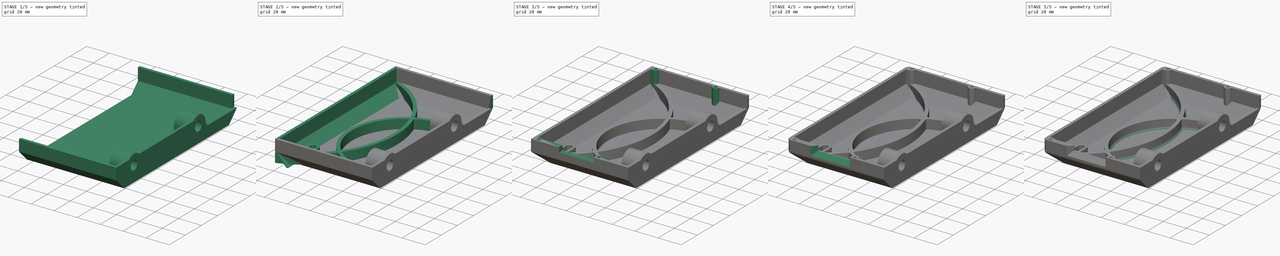
[diagram: build sequence overview — one tinted view per stage of 5, left to right]
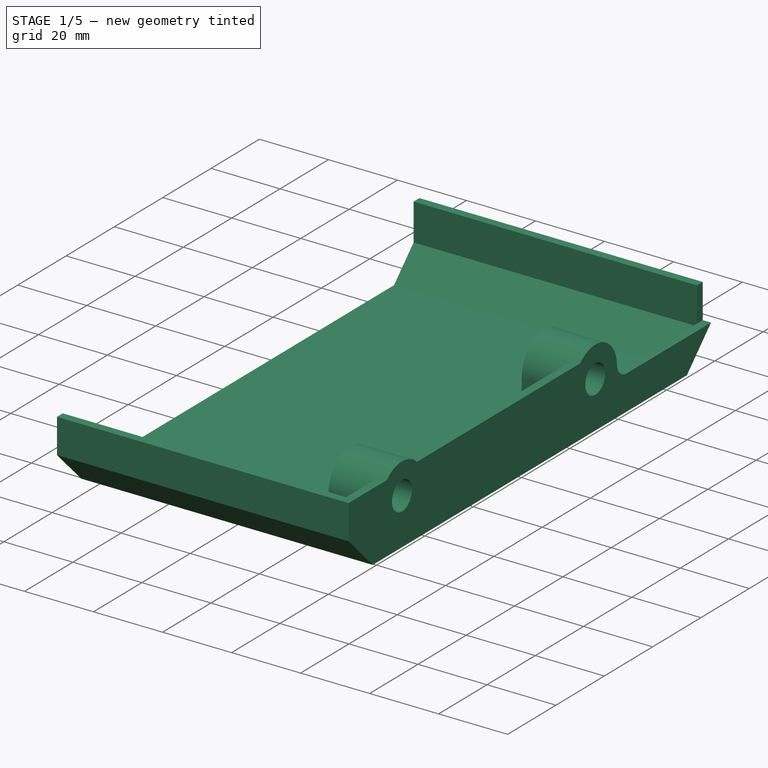
[diagram: stage 1 of 5 — iso view after this stage's code; geometry added in this stage tinted green]
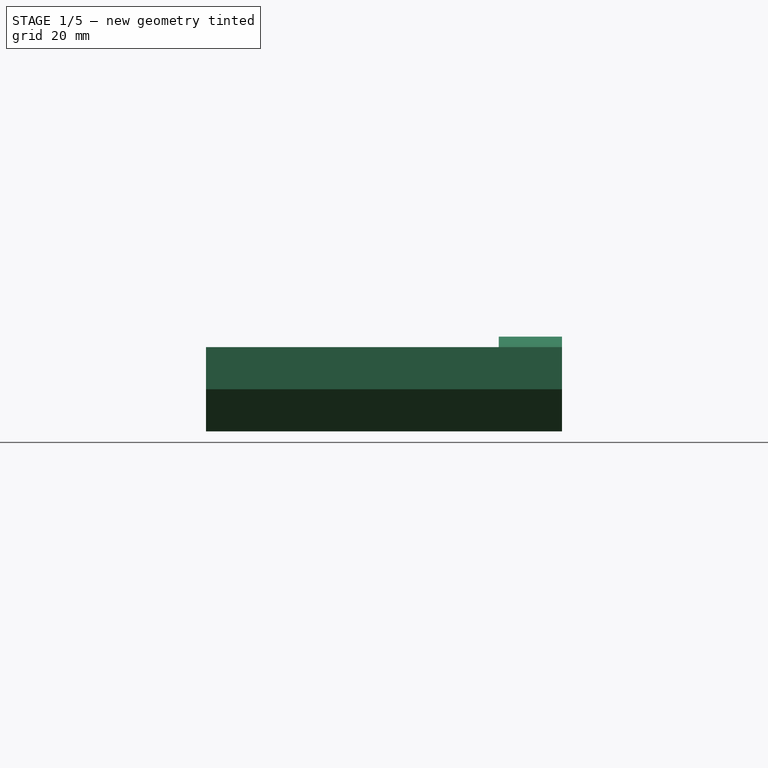
[diagram: stage 1 of 5 — front view after this stage's code; geometry added in this stage tinted green]
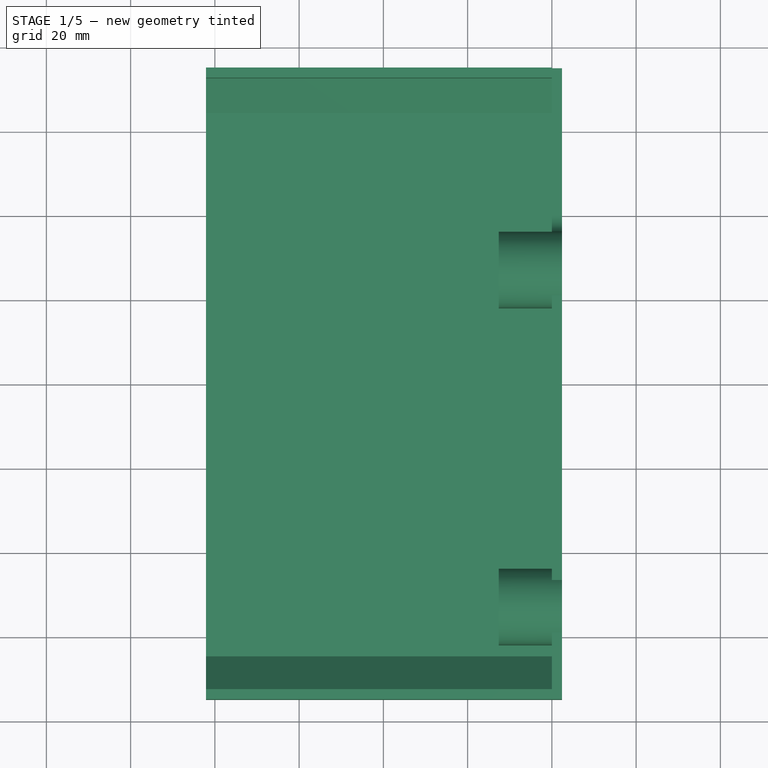
[diagram: stage 1 of 5 — top view after this stage's code; geometry added in this stage tinted green]
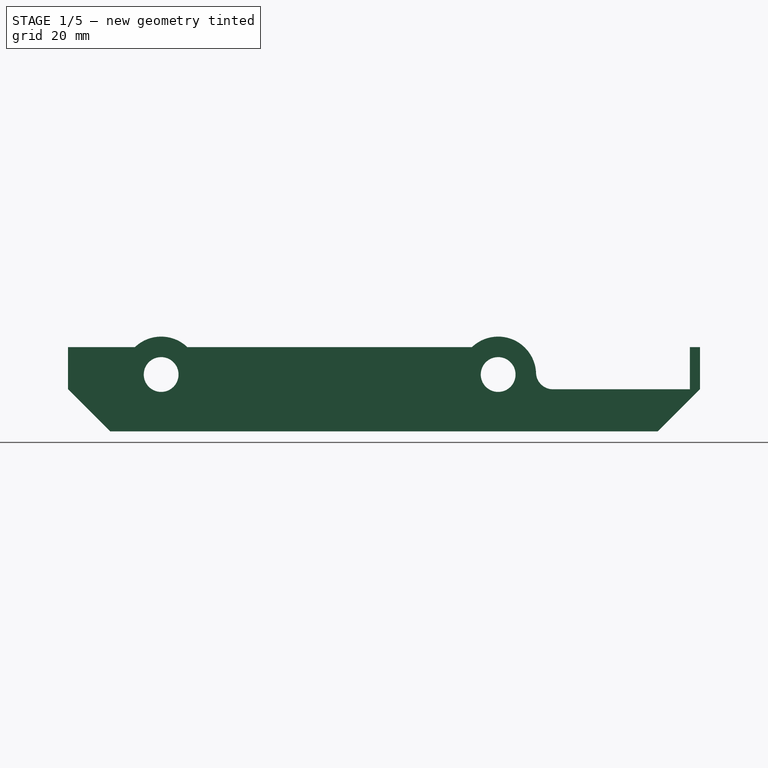
[diagram: stage 1 of 5 — right view after this stage's code; geometry added in this stage tinted green]
FCSTD DOCUMENT  (FreeCAD 0.14R3310 (Git))
Label: 97. SOPORTE LCD V4 ELECFREAK
License: CC-BY 3.0
LicenseURL: http://creativecommons.org/licenses/by/3.0/
objects: Sketcher::SketchObject×17, PartDesign::Pad×9, PartDesign::Fillet×9, PartDesign::Pocket×7, PartDesign::Chamfer×2
note: 60 computed .brp shape members not serialized (recipe doc carries the construction recipe); baked Part::Feature solids carry a one-line shape summary decoded from their .brp

FEATURE [Sketcher::SketchObject] Sketch
  Placement = pos=(0,0,0) rot=(0.57735,0.57735,0.57735;2.0944rad)
  sketch-geometry (16):
    g0: LineSegment [constr] StartX=-75 StartY=20 StartZ=0 EndX=75 EndY=20 EndZ=0
    g1: LineSegment [constr] StartX=75 StartY=20 StartZ=0 EndX=75 EndY=0 EndZ=0
    g2: LineSegment [constr] StartX=75 StartY=0 StartZ=0 EndX=-75 EndY=0 EndZ=0
    g3: LineSegment [constr] StartX=-75 StartY=0 StartZ=0 EndX=-75 EndY=20 EndZ=0
    g4: LineSegment StartX=-75 StartY=10 StartZ=0 EndX=-65 EndY=0 EndZ=0
    g5: LineSegment StartX=65 StartY=0 StartZ=0 EndX=75 EndY=10 EndZ=0
    g6: LineSegment StartX=-75 StartY=20 StartZ=0 EndX=-75 EndY=10 EndZ=0
    g7: Circle CenterX=-52.9 CenterY=13.5 CenterZ=0 NormalX=0 NormalY=0 NormalZ=1 Radius=4.13
    g8: Circle CenterX=27.1 CenterY=13.5 CenterZ=0 NormalX=0 NormalY=0 NormalZ=1 Radius=4.13
    g9: ArcOfCircle CenterX=-52.9 CenterY=13.5 CenterZ=0 NormalX=0 NormalY=0 NormalZ=1 Radius=9 StartAngle=0.80701 EndAngle=2.33458
    g10: ArcOfCircle CenterX=27.1 CenterY=13.5 CenterZ=0 NormalX=0 NormalY=0 NormalZ=1 Radius=9 StartAngle=0.0384725 EndAngle=2.33458
    g11: LineSegment StartX=-65 StartY=0 StartZ=0 EndX=65 EndY=0 EndZ=0
    g12: LineSegment StartX=-75 StartY=20 StartZ=0 EndX=-59.1249 EndY=20 EndZ=0
    g13: LineSegment StartX=-46.6751 StartY=20 StartZ=0 EndX=20.8751 EndY=20 EndZ=0
    g14: LineSegment StartX=75 StartY=10 StartZ=0 EndX=40.0904 EndY=10 EndZ=0
    g15: ArcOfCircle CenterX=40.0904 CenterY=14 CenterZ=0 NormalX=0 NormalY=0 NormalZ=1 Radius=4 StartAngle=3.18006 EndAngle=4.71239
  constraints (48):
    c: Coincident(g0,g1)
    c: Coincident(g1,g2)
    c: Coincident(g2,g3)
    c: Coincident(g3,g0)
    c: Horizontal(g0)
    c: Horizontal(g2)
    c: Vertical(g1)
    c: Vertical(g3)
    c: PointOnObject(g1,g-1)
    c: Symmetric(g1,g2,g-2)
    c: Distance(g1) = 20
    c: Distance(g0) = 150
    c: PointOnObject(g4,g3)
    c: PointOnObject(g4,g2)
    c: Angle(g4,g2) = 0.785398
    c: PointOnObject(g5,g2)
    c: PointOnObject(g5,g1)
    c: Angle(g2,g5) = 0.785398
    c: Distance(g5,g2) = 10
    c: DistanceY(g-1,g4) = 10
    c: Coincident(g6,g0)
    c: Coincident(g6,g4)
    c: Distance(g7,g3) = 22.1
    c: Distance(g7,g2) = 13.5
    c: Radius(g7) = 4.13
    c: Equal(g8,g7)
    c: Distance(g8,g2) = 13.5
    c: Distance(g7,g8) = 80
    c: Coincident(g9,g7)
    c: PointOnObject(g9,g0)
    c: PointOnObject(g9,g0)
    c: Coincident(g10,g8)
    c: PointOnObject(g10,g0)
    c: Equal(g9,g10)
    c: Radius(g9) = 9
    c: Coincident(g11,g4)
    c: Coincident(g11,g5)
    c: Coincident(g12,g0)
    c: Coincident(g12,g9)
    c: Coincident(g13,g9)
    c: Coincident(g13,g10)
    c: Coincident(g14,g5)
    c: Horizontal(g14)
    c: Coincident(g15,g14)
    c: Tangent(g15,g14)
    c: Coincident(g15,g10)
    c: Tangent(g10,g15)
    c: Radius(g15) = 4
FEATURE [PartDesign::Pad] Pad
  Length = 2.4
  Length2 = 100
  Placement = pos=(0,0,0) rot=(0.57735,0.57735,0.57735;2.0944rad)
  Sketch = -> Sketch
  Type = 0
FEATURE [Sketcher::SketchObject] Sketch001
  ExternalGeometry = -> [Pad]
  Placement = pos=(0,0,0) rot=(0.57735,0.57735,-0.57735;4.18879rad)
  Support = -> Pad [Face13]
  sketch-geometry (8):
    g0: ArcOfCircle CenterX=-52.9 CenterY=-13.5 CenterZ=0 NormalX=0 NormalY=0 NormalZ=1 Radius=9 StartAngle=3.14159 EndAngle=6.28319
    g1: ArcOfCircle CenterX=27.1 CenterY=-13.5 CenterZ=0 NormalX=0 NormalY=0 NormalZ=1 Radius=9 StartAngle=3.1416 EndAngle=6.28319
    g2: LineSegment StartX=36.1 StartY=-13.5 StartZ=0 EndX=36.1 EndY=0 EndZ=0
    g3: LineSegment StartX=18.1 StartY=-13.5 StartZ=0 EndX=18.1 EndY=0 EndZ=0
    g4: LineSegment StartX=-43.9 StartY=-13.5 StartZ=0 EndX=-43.9 EndY=0 EndZ=0
    g5: LineSegment StartX=-61.9 StartY=-13.5 StartZ=0 EndX=-61.9 EndY=0 EndZ=0
    g6: LineSegment StartX=-61.9 StartY=0 StartZ=0 EndX=-43.9 EndY=0 EndZ=0
    g7: LineSegment StartX=18.1 StartY=0 StartZ=0 EndX=36.1 EndY=0 EndZ=0
  constraints (24):
    c: Coincident(g0,g-3)
    c: Equal(g0,g-3)
    c: Coincident(g1,g-4)
    c: Equal(g1,g-4)
    c: Coincident(g2,g1)
    c: PointOnObject(g2,g-1)
    c: Vertical(g2)
    c: Tangent(g1,g2)
    c: Coincident(g3,g1)
    c: PointOnObject(g3,g-1)
    c: Vertical(g3)
    c: Tangent(g1,g3)
    c: Coincident(g4,g0)
    c: Vertical(g4)
    c: Tangent(g4,g0)
    c: Coincident(g5,g0)
    c: PointOnObject(g5,g-1)
    c: Vertical(g5)
    c: Tangent(g0,g5)
    c: PointOnObject(g4,g-1)
    c: Coincident(g6,g5)
    c: Coincident(g6,g4)
    c: Coincident(g7,g3)
    c: Coincident(g7,g2)
FEATURE [PartDesign::Pad] Pad001
  Length = 12.6
  Length2 = 100
  Placement = pos=(0,0,0) rot=(0.57735,0.57735,0.57735;2.0944rad)
  Sketch = -> Sketch001
  Type = 0
FEATURE [Sketcher::SketchObject] Sketch002
  ExternalGeometry = -> [Pad001]
  Placement = pos=(-12.6,0,0) rot=(0.57735,0.57735,-0.57735;4.18879rad)
  Support = -> Pad001 [Face25]
  sketch-geometry (2):
    g0: Circle CenterX=-52.9 CenterY=-13.5 CenterZ=0 NormalX=0 NormalY=0 NormalZ=1 Radius=4.13
    g1: Circle CenterX=27.1 CenterY=-13.5 CenterZ=0 NormalX=0 NormalY=0 NormalZ=1 Radius=4.13
  constraints (4):
    c: Coincident(g0,g-3)
    c: Coincident(g1,g-4)
    c: Equal(g1,g0)
    c: Radius(g0) = 4.13
FEATURE [PartDesign::Pocket] Pocket
  Length = 5
  Placement = pos=(0,0,0) rot=(0.57735,0.57735,0.57735;2.0944rad)
  Sketch = -> Sketch002
  Type = 1
FEATURE [Sketcher::SketchObject] Sketch003
  ExternalGeometry = -> [Pocket]
  Placement = pos=(-12.6,0,0) rot=(0.57735,0.57735,-0.57735;4.18879rad)
  Support = -> Pocket [Face15]
  sketch-geometry (12):
    g0: LineSegment StartX=-52.8961 StartY=-5.98333 StartZ=0 EndX=-46.3923 EndY=-9.73833 EndZ=0
    g1: LineSegment StartX=-46.3923 StartY=-9.73833 StartZ=0 EndX=-46.3923 EndY=-17.2483 EndZ=0
    g2: LineSegment StartX=-46.3923 StartY=-17.2483 StartZ=0 EndX=-52.8961 EndY=-21.0033 EndZ=0
    g3: LineSegment StartX=-52.8961 StartY=-21.0033 StartZ=0 EndX=-59.4 EndY=-17.2483 EndZ=0
    g4: LineSegment StartX=-59.4 StartY=-17.2483 StartZ=0 EndX=-59.4 EndY=-9.73833 EndZ=0
    g5: LineSegment StartX=-59.4 StartY=-9.73833 StartZ=0 EndX=-52.8961 EndY=-5.98333 EndZ=0
    g6: LineSegment StartX=27.1039 StartY=-5.98333 StartZ=0 EndX=20.6 EndY=-9.73833 EndZ=0
    g7: LineSegment StartX=20.6 StartY=-9.73833 StartZ=0 EndX=20.6 EndY=-17.2483 EndZ=0
    g8: LineSegment StartX=20.6 StartY=-17.2483 StartZ=0 EndX=27.1039 EndY=-21.0033 EndZ=0
    g9: LineSegment StartX=27.1039 StartY=-21.0033 StartZ=0 EndX=33.6077 EndY=-17.2483 EndZ=0
    g10: LineSegment StartX=33.6077 StartY=-17.2483 StartZ=0 EndX=33.6077 EndY=-9.73833 EndZ=0
    g11: LineSegment StartX=33.6077 StartY=-9.73833 StartZ=0 EndX=27.1039 EndY=-5.98333 EndZ=0
  constraints (36):
    c: Coincident(g0,g1)
    c: Coincident(g1,g2)
    c: Coincident(g2,g3)
    c: Coincident(g3,g4)
    c: Vertical(g4)
    c: Coincident(g4,g5)
    c: Coincident(g5,g0)
    c: Coincident(g6,g7)
    c: Vertical(g7)
    c: Coincident(g7,g8)
    c: Coincident(g8,g9)
    c: Coincident(g9,g10)
    c: Vertical(g10)
    c: Coincident(g10,g11)
    c: Coincident(g11,g6)
    c: Equal(g0,g5)
    c: Equal(g5,g4)
    c: Equal(g4,g3)
    c: Equal(g3,g2)
    c: Equal(g2,g1)
    c: Equal(g1,g7)
    c: Equal(g7,g11)
    c: Equal(g11,g6)
    c: Equal(g6,g10)
    c: Equal(g10,g9)
    c: Equal(g9,g8)
    c: Vertical(g1)
    c: Distance(g3) = 7.51
    c: Angle(g3,g4) = 2.0944
    c: Angle(g1,g2) = 2.0944
    c: Angle(g8,g7) = 2.0944
    c: Angle(g10,g9) = 2.0944
    c: Distance(g-4,g4) = 6.5
    c: Distance(g-4,g2) = 6.5
    c: Distance(g-3,g9) = 6.5
    c: Distance(g-3,g7) = 6.5
FEATURE [PartDesign::Pocket] Pocket001
  Length = 5
  Placement = pos=(0,0,0) rot=(0.57735,0.57735,0.57735;2.0944rad)
  Sketch = -> Sketch003
  Type = 0
FEATURE [Sketcher::SketchObject] Sketch004
  ExternalGeometry = -> [Pocket001]
  Placement = pos=(0,0,0) rot=(0.57735,0.57735,-0.57735;4.18879rad)
  Support = -> Pocket001 [Face19]
  sketch-geometry (12):
    g0: LineSegment StartX=65 StartY=0 StartZ=0 EndX=-65 EndY=0 EndZ=0
    g1: LineSegment StartX=-65 StartY=0 StartZ=0 EndX=-75 EndY=-10 EndZ=0
    g2: LineSegment StartX=-75 StartY=-10 StartZ=0 EndX=-75 EndY=-20 EndZ=0
    g3: LineSegment StartX=75 StartY=-20 StartZ=0 EndX=75 EndY=-10 EndZ=0
    g4: LineSegment StartX=75 StartY=-10 StartZ=0 EndX=65 EndY=0 EndZ=0
    g5: LineSegment StartX=-75 StartY=-20 StartZ=0 EndX=-72.6 EndY=-20 EndZ=0
    g6: LineSegment StartX=-72.6 StartY=-20 StartZ=0 EndX=-72.6 EndY=-9.29706 EndZ=0
    g7: LineSegment StartX=-72.6 StartY=-9.29706 StartZ=0 EndX=-64.5029 EndY=-1.2 EndZ=0
    g8: LineSegment StartX=-64.5029 StartY=-1.2 StartZ=0 EndX=64.5029 EndY=-1.2 EndZ=0
    g9: LineSegment StartX=64.5029 StartY=-1.2 StartZ=0 EndX=72.6 EndY=-9.29706 EndZ=0
    g10: LineSegment StartX=72.6 StartY=-9.29706 StartZ=0 EndX=72.6 EndY=-20 EndZ=0
    g11: LineSegment StartX=72.6 StartY=-20 StartZ=0 EndX=75 EndY=-20 EndZ=0
  constraints (32):
    c: Coincident(g-3,g0)
    c: Coincident(g0,g-4)
    c: Coincident(g0,g1)
    c: Coincident(g1,g-4)
    c: Coincident(g1,g2)
    c: Vertical(g2)
    c: Coincident(g3,g-3)
    c: Vertical(g3)
    c: Coincident(g3,g4)
    c: Coincident(g4,g0)
    c: Coincident(g2,g5)
    c: Coincident(g5,g6)
    c: Vertical(g6)
    c: Coincident(g6,g7)
    c: Coincident(g7,g8)
    c: Horizontal(g8)
    c: Coincident(g8,g9)
    c: Coincident(g9,g10)
    c: Vertical(g10)
    c: Coincident(g10,g11)
    c: Coincident(g11,g3)
    c: Coincident(g2,g-5)
    c: Horizontal(g5)
    c: Distance(g5,g2) = 2.4
    c: Distance(g0,g8) = 1.2
    c: Parallel(g7,g1)
    c: Parallel(g9,g4)
    c: DistanceY(g-1,g3) = -20
    c: Horizontal(g11)
    c: Distance(g11) = 2.4
    c: Distance(g6,g1) = 1.2
    c: Distance(g9,g4) = 1.2
FEATURE [PartDesign::Pad] Pad002
  Length = 82.1
  Length2 = 100
  Placement = pos=(0,0,0) rot=(0.57735,0.57735,0.57735;2.0944rad)
  Sketch = -> Sketch004
  Type = 0
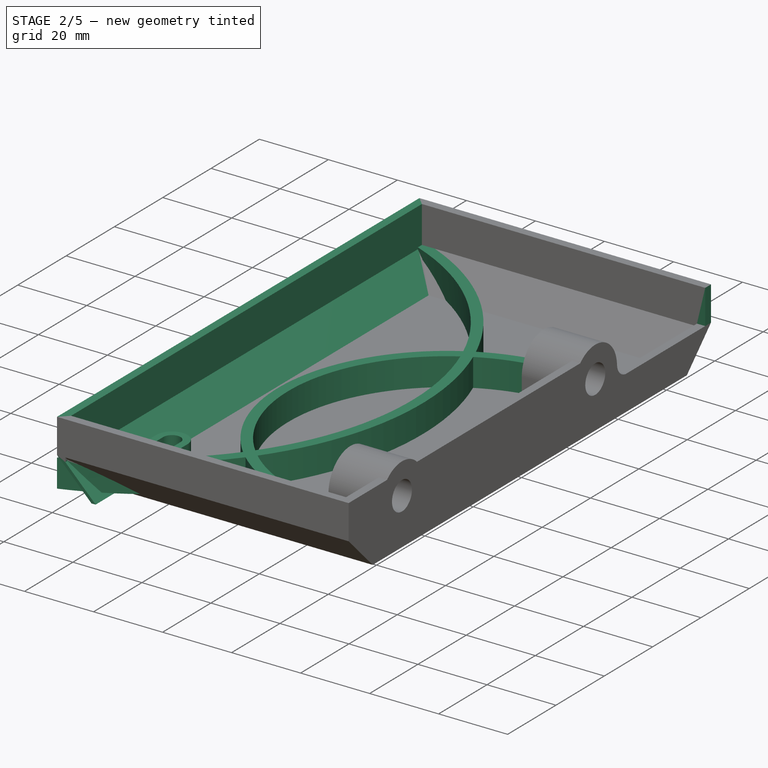
[diagram: stage 2 of 5 — iso view after this stage's code; geometry added in this stage tinted green]
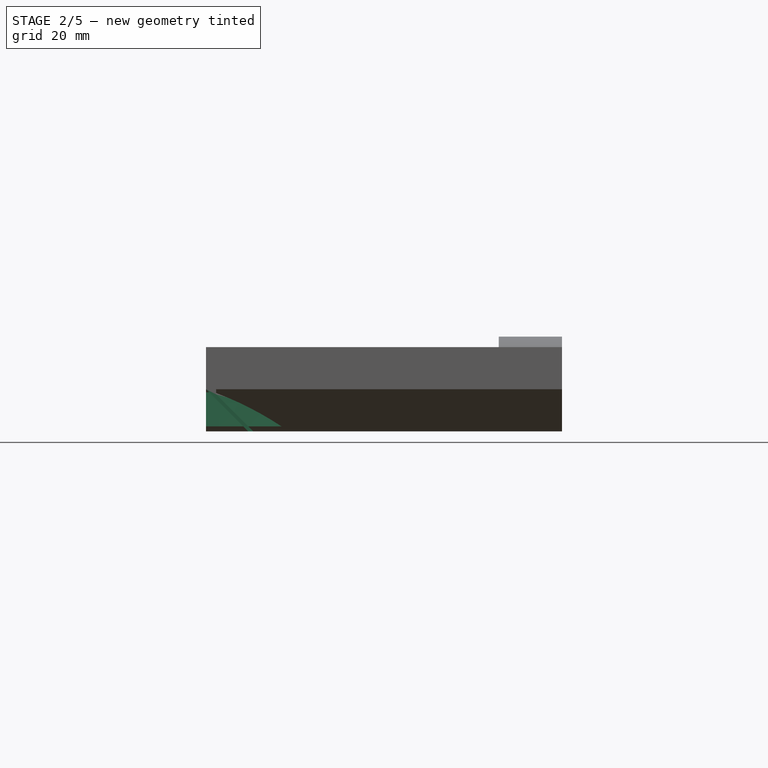
[diagram: stage 2 of 5 — front view after this stage's code; geometry added in this stage tinted green]
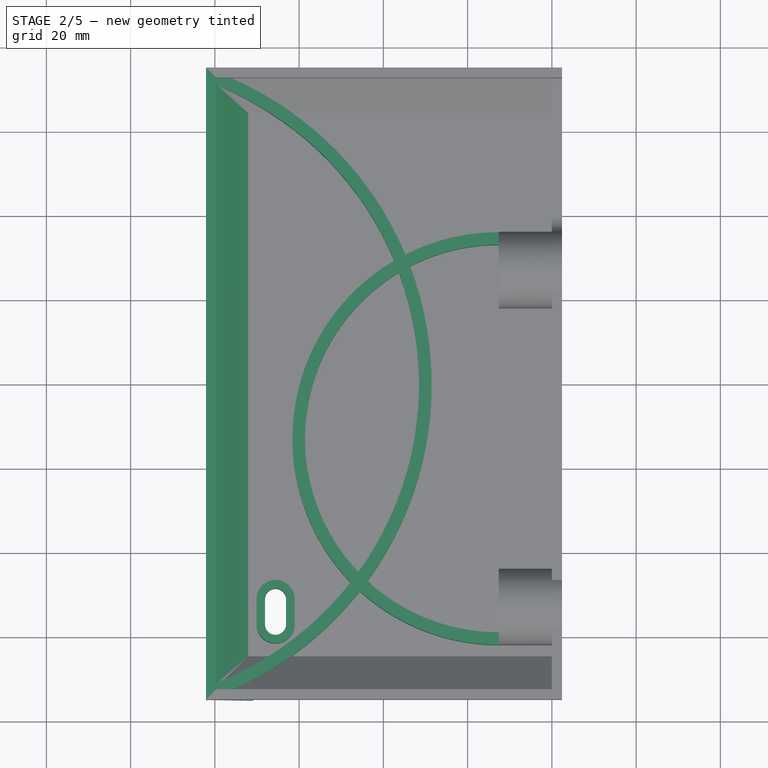
[diagram: stage 2 of 5 — top view after this stage's code; geometry added in this stage tinted green]
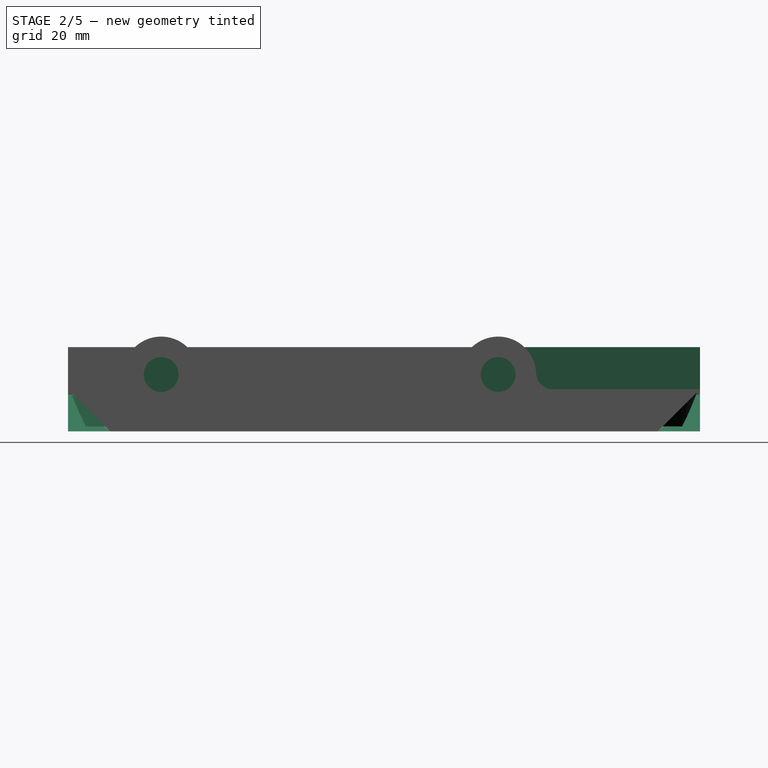
[diagram: stage 2 of 5 — right view after this stage's code; geometry added in this stage tinted green]
FEATURE [Sketcher::SketchObject] Sketch005
  Placement = pos=(0,75,0) rot=(0.57735,0.57735,0.57735;4.18879rad)
  Support = -> Pad002 [Face25]
FEATURE [Sketcher::SketchObject] Sketch006
  ExternalGeometry = -> [Pad002]
  Placement = pos=(0,0,0) rot=(0.57735,0.57735,0.57735;2.0944rad)
  Support = -> Pad002 [Face13]
  sketch-geometry (4):
    g0: LineSegment StartX=72.6 StartY=10 StartZ=0 EndX=75 EndY=10 EndZ=0
    g1: LineSegment StartX=75 StartY=10 StartZ=0 EndX=75 EndY=20 EndZ=0
    g2: LineSegment StartX=75 StartY=20 StartZ=0 EndX=72.6 EndY=20 EndZ=0
    g3: LineSegment StartX=72.6 StartY=20 StartZ=0 EndX=72.6 EndY=10 EndZ=0
  constraints (11):
    c: Coincident(g0,g1)
    c: Coincident(g1,g2)
    c: Coincident(g2,g3)
    c: Coincident(g3,g0)
    c: Horizontal(g0)
    c: Horizontal(g2)
    c: Vertical(g1)
    c: Vertical(g3)
    c: Coincident(g0,g-4)
    c: Coincident(g0,g-3)
    c: Coincident(g-4,g2)
FEATURE [PartDesign::Pad] Pad003
  Length = 2.4
  Length2 = 100
  Placement = pos=(0,0,0) rot=(0.57735,0.57735,0.57735;2.0944rad)
  Sketch = -> Sketch006
  Type = 0
FEATURE [Sketcher::SketchObject] Sketch007
  ExternalGeometry = -> [Pad003]
  Placement = pos=(0,75,0) rot=(0.57735,0.57735,0.57735;4.18879rad)
  Support = -> Pad003 [Face46]
  sketch-geometry (6):
    g0: LineSegment StartX=20 StartY=-82.1 StartZ=0 EndX=10 EndY=-82.1 EndZ=0
    g1: LineSegment StartX=10 StartY=-82.1 StartZ=0 EndX=0 EndY=-72.1 EndZ=0
    g2: LineSegment StartX=0 StartY=-72.1 StartZ=0 EndX=0 EndY=-70.9 EndZ=0
    g3: LineSegment StartX=20 StartY=-82.1 StartZ=0 EndX=20 EndY=-79.7 EndZ=0
    g4: LineSegment StartX=20 StartY=-79.7 StartZ=0 EndX=8.8 EndY=-79.7 EndZ=0
    g5: LineSegment StartX=0 StartY=-70.9 StartZ=0 EndX=8.8 EndY=-79.7 EndZ=0
  constraints (17):
    c: Coincident(g0,g-3)
    c: Horizontal(g0)
    c: Coincident(g0,g-4)
    c: Coincident(g1,g0)
    c: PointOnObject(g1,g-2)
    c: Angle(g0,g1) = 2.35619
    c: Coincident(g2,g1)
    c: Vertical(g2)
    c: Distance(g2) = 1.2
    c: Coincident(g3,g0)
    c: Vertical(g3)
    c: Distance(g3,g0) = 2.4
    c: Coincident(g4,g3)
    c: Horizontal(g4)
    c: Coincident(g5,g2)
    c: Parallel(g5,g1)
    c: Coincident(g5,g4)
FEATURE [PartDesign::Pad] Pad004
  Length = 150
  Length2 = 100
  Placement = pos=(0,0,0) rot=(0.57735,0.57735,0.57735;2.0944rad)
  Reversed = true
  Sketch = -> Sketch007
  Type = 0
FEATURE [Sketcher::SketchObject] Sketch008
  ExternalGeometry = -> [Pad004]
  Placement = pos=(0,0,1.2) rot=(0,0,-1;1.5708rad)
  Support = -> Pad004 [Face4]
  sketch-geometry (5):
    g0: LineSegment [constr] StartX=-36.1 StartY=-12.6 StartZ=0 EndX=61.9 EndY=-12.6 EndZ=0
    g1: ArcOfCircle CenterX=12.9 CenterY=-12.6 CenterZ=0 NormalX=0 NormalY=0 NormalZ=1 Radius=49 StartAngle=3.14159 EndAngle=6.28319
    g2: ArcOfCircle CenterX=12.9 CenterY=-12.6 CenterZ=0 NormalX=0 NormalY=0 NormalZ=1 Radius=46 StartAngle=3.14159 EndAngle=6.28319
    g3: LineSegment StartX=-36.1 StartY=-12.6 StartZ=0 EndX=-33.1 EndY=-12.6 EndZ=0
    g4: LineSegment StartX=58.9 StartY=-12.6 StartZ=0 EndX=61.9 EndY=-12.6 EndZ=0
  constraints (13):
    c: Coincident(g0,g-3)
    c: Coincident(g0,g-4)
    c: PointOnObject(g1,g0)
    c: Coincident(g1,g0)
    c: Coincident(g1,g0)
    c: Coincident(g2,g1)
    c: PointOnObject(g2,g0)
    c: PointOnObject(g2,g0)
    c: Radius(g2) = 46
    c: Coincident(g3,g0)
    c: Coincident(g3,g2)
    c: Coincident(g4,g2)
    c: Coincident(g4,g0)
FEATURE [PartDesign::Pad] Pad005
  Length = 8.097
  Length2 = 100
  Placement = pos=(0,0,0) rot=(0.57735,0.57735,0.57735;2.0944rad)
  Sketch = -> Sketch008
  Type = 0
FEATURE [Sketcher::SketchObject] Sketch009
  ExternalGeometry = -> [Pad005]
  Placement = pos=(0,0,1.2) rot=(0,0,-1;1.5708rad)
  Support = -> Pad005 [Face4]
  sketch-geometry (4):
    g0: ArcOfCircle CenterX=0 CenterY=-107.827 CenterZ=0 NormalX=0 NormalY=0 NormalZ=1 Radius=79.29 StartAngle=0.330455 EndAngle=2.81114
    g1: ArcOfCircle CenterX=0 CenterY=-107.827 CenterZ=0 NormalX=0 NormalY=0 NormalZ=1 Radius=76.29 StartAngle=0.343976 EndAngle=2.79762
    g2: LineSegment StartX=-75 StartY=-82.1 StartZ=0 EndX=-71.821 EndY=-82.1 EndZ=0
    g3: LineSegment StartX=75 StartY=-82.1 StartZ=0 EndX=71.821 EndY=-82.1 EndZ=0
  constraints (12):
    c: PointOnObject(g0,g-2)
    c: Coincident(g0,g-4)
    c: Coincident(g0,g-3)
    c: Radius(g0) = 79.29
    c: Coincident(g1,g0)
    c: Radius(g1) = 76.29
    c: Coincident(g2,g0)
    c: Coincident(g2,g1)
    c: Horizontal(g2)
    c: Coincident(g3,g0)
    c: Coincident(g3,g1)
    c: Horizontal(g3)
FEATURE [PartDesign::Pad] Pad006
  Length = 8.097
  Length2 = 100
  Placement = pos=(0,0,0) rot=(0.57735,0.57735,0.57735;2.0944rad)
  Sketch = -> Sketch009
  Type = 0
FEATURE [Sketcher::SketchObject] Sketch010
  ExternalGeometry = -> [Pad006]
  Placement = pos=(0,0,0) rot=(0.707107,0.707107,0;3.14159rad)
  Support = -> Pad006 [Face35]
  sketch-geometry (4):
    g0: ArcOfCircle CenterX=-57 CenterY=-65.6 CenterZ=0 NormalX=0 NormalY=0 NormalZ=1 Radius=2.5 StartAngle=1.5708 EndAngle=4.71239
    g1: ArcOfCircle CenterX=-51 CenterY=-65.6 CenterZ=0 NormalX=0 NormalY=0 NormalZ=1 Radius=2.5 StartAngle=4.71239 EndAngle=7.85398
    g2: LineSegment StartX=-57 StartY=-63.1 StartZ=0 EndX=-51 EndY=-63.1 EndZ=0
    g3: LineSegment StartX=-57 StartY=-68.1 StartZ=0 EndX=-51 EndY=-68.1 EndZ=0
  constraints (14):
    c: Coincident(g2,g0)
    c: Coincident(g2,g1)
    c: Horizontal(g2)
    c: Coincident(g3,g0)
    c: Coincident(g3,g1)
    c: Horizontal(g3)
    c: Tangent(g0,g3)
    c: Tangent(g1,g3)
    c: Tangent(g1,g2)
    c: Tangent(g0,g2)
    c: Distance(g0,g1) = 6
    c: Radius(g1) = 2.5
    c: Distance(g0,g-3) = 18
    c: Distance(g0,g-4) = 14
FEATURE [PartDesign::Pocket] Pocket002
  Length = 5
  Placement = pos=(0,0,0) rot=(0.57735,0.57735,0.57735;2.0944rad)
  Sketch = -> Sketch010
  Type = 0
FEATURE [Sketcher::SketchObject] Sketch011
  ExternalGeometry = -> [Pocket002]
  Placement = pos=(0,0,1.2) rot=(0,0,-1;1.5708rad)
  Support = -> Pocket002 [Face84]
  sketch-geometry (8):
    g0: ArcOfCircle CenterX=51 CenterY=-65.6 CenterZ=0 NormalX=0 NormalY=0 NormalZ=1 Radius=2.5 StartAngle=1.5708 EndAngle=4.71239
    g1: ArcOfCircle CenterX=57 CenterY=-65.6 CenterZ=0 NormalX=0 NormalY=0 NormalZ=1 Radius=2.5 StartAngle=4.71239 EndAngle=7.85398
    g2: LineSegment StartX=51 StartY=-63.1 StartZ=0 EndX=57 EndY=-63.1 EndZ=0
    g3: LineSegment StartX=51 StartY=-68.1 StartZ=0 EndX=57 EndY=-68.1 EndZ=0
    g4: LineSegment StartX=51 StartY=-61.08 StartZ=0 EndX=57 EndY=-61.08 EndZ=0
    g5: LineSegment StartX=51 StartY=-70.12 StartZ=0 EndX=57 EndY=-70.12 EndZ=0
    g6: ArcOfCircle CenterX=57 CenterY=-65.6 CenterZ=0 NormalX=0 NormalY=0 NormalZ=1 Radius=4.52 StartAngle=4.71239 EndAngle=7.85398
    g7: ArcOfCircle CenterX=51 CenterY=-65.6 CenterZ=0 NormalX=0 NormalY=0 NormalZ=1 Radius=4.52 StartAngle=1.5708 EndAngle=4.71239
  constraints (23):
    c: Coincident(g0,g-4)
    c: Coincident(g0,g-4)
    c: Coincident(g0,g-4)
    c: Coincident(g1,g-3)
    c: Coincident(g1,g-3)
    c: Coincident(g1,g-3)
    c: Coincident(g2,g0)
    c: Coincident(g2,g1)
    c: Horizontal(g2)
    c: Coincident(g3,g0)
    c: Coincident(g3,g1)
    c: Horizontal(g5)
    c: Horizontal(g4)
    c: Coincident(g6,g1)
    c: Coincident(g6,g4)
    c: Coincident(g6,g5)
    c: Radius(g6) = 4.52
    c: Coincident(g7,g0)
    c: Coincident(g7,g4)
    c: Coincident(g7,g5)
    c: Tangent(g7,g5)
    c: Tangent(g6,g4)
    c: Tangent(g6,g5)
FEATURE [PartDesign::Pad] Pad007
  Length = 8.097
  Length2 = 100
  Placement = pos=(0,0,0) rot=(0.57735,0.57735,0.57735;2.0944rad)
  Sketch = -> Sketch011
  Type = 0
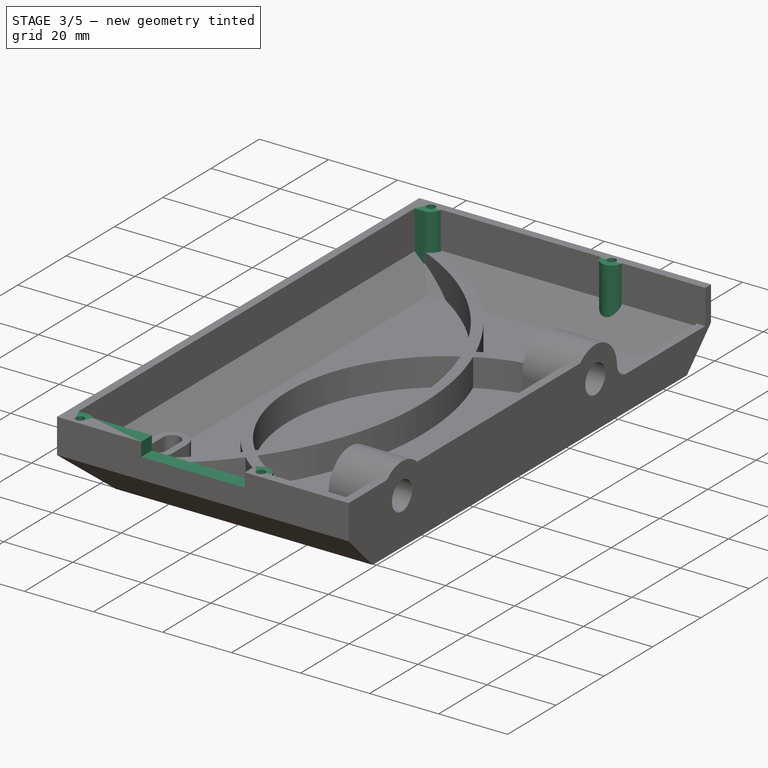
[diagram: stage 3 of 5 — iso view after this stage's code; geometry added in this stage tinted green]
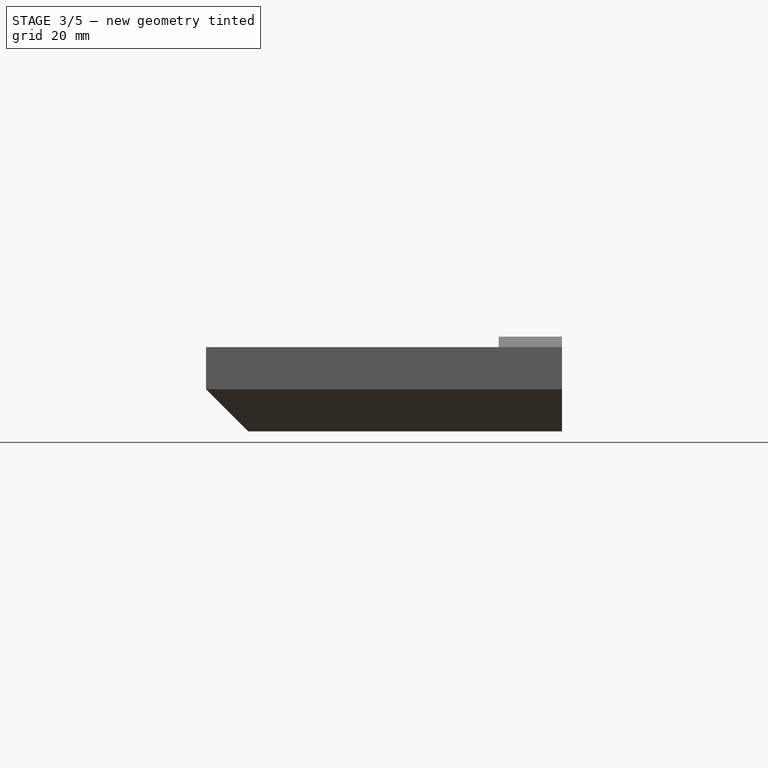
[diagram: stage 3 of 5 — front view after this stage's code; geometry added in this stage tinted green]
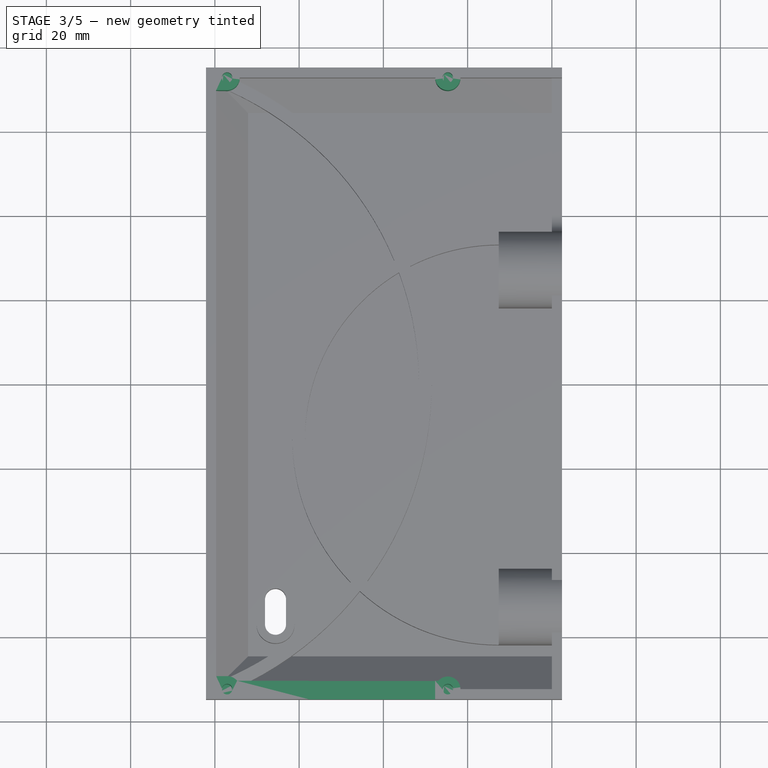
[diagram: stage 3 of 5 — top view after this stage's code; geometry added in this stage tinted green]
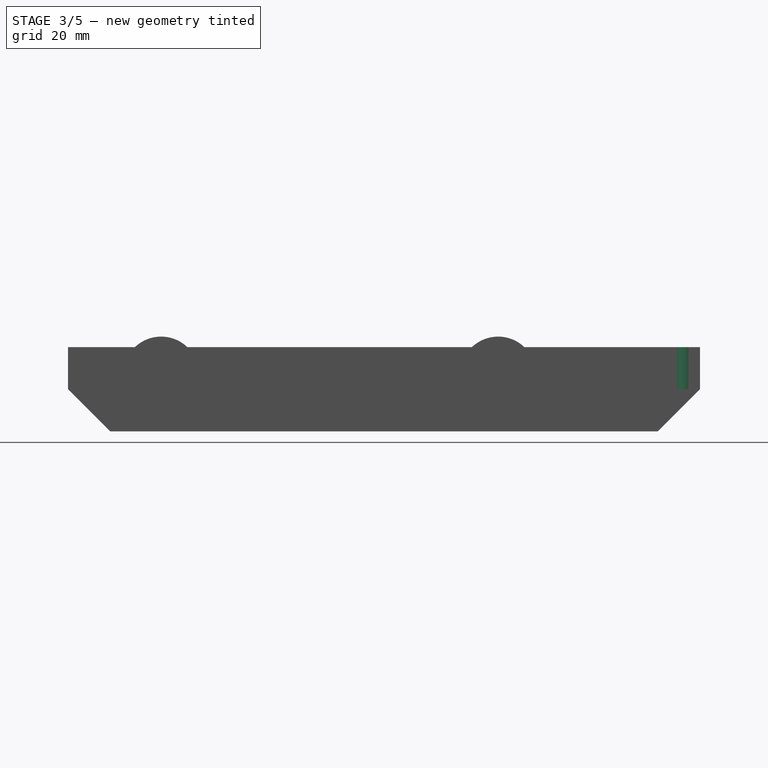
[diagram: stage 3 of 5 — right view after this stage's code; geometry added in this stage tinted green]
FEATURE [Sketcher::SketchObject] Sketch012
  ExternalGeometry = -> [Pad007]
  Placement = pos=(0,0,20) rot=(0,0,-1;1.5708rad)
  Support = -> Pad007 [Face7]
  sketch-geometry (13):
    g0: ArcOfCircle CenterX=-72.6 CenterY=-24.7 CenterZ=0 NormalX=0 NormalY=0 NormalZ=1 Radius=3 StartAngle=4.71239 EndAngle=7.85398
    g1: LineSegment StartX=-72.6 StartY=-21.7 StartZ=0 EndX=-72.6 EndY=-27.7 EndZ=0
    g2: ArcOfCircle CenterX=-72.6 CenterY=-77.1 CenterZ=0 NormalX=0 NormalY=0 NormalZ=1 Radius=3 StartAngle=6.28318 EndAngle=7.85398
    g3: LineSegment StartX=-69.6 StartY=-77.1 StartZ=0 EndX=-69.6 EndY=-79.7 EndZ=0
    g4: LineSegment StartX=-72.6 StartY=-79.7 StartZ=0 EndX=-69.6 EndY=-79.7 EndZ=0
    g5: LineSegment StartX=-72.6 StartY=-79.7 StartZ=0 EndX=-72.6 EndY=-74.1 EndZ=0
    g6: LineSegment [constr] StartX=70.6 StartY=0 StartZ=0 EndX=70.6 EndY=-79.7 EndZ=0
    g7: ArcOfCircle CenterX=72.6 CenterY=-24.7 CenterZ=0 NormalX=0 NormalY=0 NormalZ=1 Radius=3 StartAngle=1.5708 EndAngle=3.98266
    g8: ArcOfCircle CenterX=72.6 CenterY=-77.1 CenterZ=0 NormalX=0 NormalY=0 NormalZ=1 Radius=3.1 StartAngle=2.27203 EndAngle=3.14159
    g9: LineSegment StartX=69.5 StartY=-77.1 StartZ=0 EndX=69.5 EndY=-79.7 EndZ=0
    g10: LineSegment StartX=70.6 StartY=-26.9361 StartZ=0 EndX=70.6 EndY=-74.7314 EndZ=0
    g11: LineSegment StartX=72.6 StartY=-21.7 StartZ=0 EndX=72.6 EndY=-79.7 EndZ=0
    g12: LineSegment StartX=72.6 StartY=-79.7 StartZ=0 EndX=69.5 EndY=-79.7 EndZ=0
  constraints (42):
    c: PointOnObject(g0,g-3)
    c: PointOnObject(g0,g-3)
    c: PointOnObject(g0,g-3)
    c: Radius(g0) = 3
    c: Distance(g0,g-3) = 24.1
    c: Coincident(g1,g0)
    c: Coincident(g1,g0)
    c: PointOnObject(g2,g-3)
    c: PointOnObject(g2,g-3)
    c: Coincident(g3,g2)
    c: PointOnObject(g3,g-4)
    c: Vertical(g3)
    c: Tangent(g2,g3)
    c: Radius(g2) = 3
    c: Distance(g3) = 2.6
    c: Coincident(g4,g-4)
    c: Coincident(g4,g3)
    c: Coincident(g5,g4)
    c: Coincident(g5,g2)
    c: Vertical(g6)
    c: Distance(g6,g-5) = 4.4
    c: PointOnObject(g6,g-1)
    c: PointOnObject(g6,g-4)
    c: PointOnObject(g7,g-6)
    c: PointOnObject(g7,g-6)
    c: PointOnObject(g7,g6)
    c: Symmetric(g7,g0,g-2)
    c: Equal(g0,g7)
    c: PointOnObject(g8,g-6)
    c: PointOnObject(g8,g6)
    c: Coincident(g9,g8)
    c: PointOnObject(g9,g-4)
    c: Vertical(g9)
    c: Tangent(g9,g8)
    c: Distance(g9) = 2.6
    c: Distance(g9,g-5) = 5.5
    c: Coincident(g10,g7)
    c: Coincident(g10,g8)
    c: Coincident(g11,g7)
    c: Coincident(g11,g-6)
    c: Coincident(g12,g11)
    c: Coincident(g12,g9)
FEATURE [PartDesign::Pad] Pad008
  Length = 15
  Length2 = 100
  Placement = pos=(0,0,0) rot=(0.57735,0.57735,0.57735;2.0944rad)
  Reversed = true
  Sketch = -> Sketch012
  Type = 0
FEATURE [Sketcher::SketchObject] Sketch013
  ExternalGeometry = -> [Pad008]
  Placement = pos=(2.4,0,0) rot=(0.57735,0.57735,0.57735;2.0944rad)
  Support = -> Pad008 [Face17]
  sketch-geometry (6):
    g0: LineSegment StartX=-75 StartY=10 StartZ=0 EndX=-65 EndY=0 EndZ=0
    g1: LineSegment StartX=-65 StartY=0 StartZ=0 EndX=-75 EndY=0 EndZ=0
    g2: LineSegment StartX=-75 StartY=0 StartZ=0 EndX=-75 EndY=10 EndZ=0
    g3: LineSegment StartX=75 StartY=10 StartZ=0 EndX=65 EndY=0 EndZ=0
    g4: LineSegment StartX=65 StartY=0 StartZ=0 EndX=75 EndY=0 EndZ=0
    g5: LineSegment StartX=75 StartY=0 StartZ=0 EndX=75 EndY=10 EndZ=0
  constraints (14):
    c: Coincident(g0,g-3)
    c: Coincident(g0,g1)
    c: PointOnObject(g1,g-1)
    c: Coincident(g1,g2)
    c: Coincident(g2,g0)
    c: Vertical(g2)
    c: Coincident(g0,g-3)
    c: Coincident(g-4,g3)
    c: Coincident(g3,g-4)
    c: Coincident(g3,g4)
    c: Horizontal(g4)
    c: Coincident(g4,g5)
    c: Coincident(g5,g3)
    c: Vertical(g5)
FEATURE [PartDesign::Pocket] Pocket003
  Length = 3
  Placement = pos=(0,0,0) rot=(0.57735,0.57735,0.57735;2.0944rad)
  Sketch = -> Sketch013
  Type = 1
FEATURE [Sketcher::SketchObject] Sketch014
  ExternalGeometry = -> [Pocket003]
  Placement = pos=(0,75,0) rot=(0.57735,0.57735,0.57735;4.18879rad)
  Support = -> Pocket003 [Face20]
  sketch-geometry (3):
    g0: LineSegment StartX=0 StartY=-72.1 StartZ=0 EndX=10 EndY=-82.1 EndZ=0
    g1: LineSegment StartX=0 StartY=-72.1 StartZ=0 EndX=0 EndY=-82.1 EndZ=0
    g2: LineSegment StartX=0 StartY=-82.1 StartZ=0 EndX=10 EndY=-82.1 EndZ=0
  constraints (8):
    c: PointOnObject(g0,g-2)
    c: Coincident(g-4,g0)
    c: PointOnObject(g-3,g0)
    c: Coincident(g0,g1)
    c: Coincident(g1,g2)
    c: Coincident(g2,g0)
    c: Horizontal(g2)
    c: PointOnObject(g1,g-2)
FEATURE [PartDesign::Pocket] Pocket004
  Length = 5
  Placement = pos=(0,0,0) rot=(0.57735,0.57735,0.57735;2.0944rad)
  Sketch = -> Sketch014
  Type = 1
FEATURE [Sketcher::SketchObject] Sketch015
  ExternalGeometry = -> [Pocket004]
  Placement = pos=(0,-75,0) rot=(0.57735,0.57735,-0.57735;2.0944rad)
  Support = -> Pocket004 [Face22]
  sketch-geometry (4):
    g0: LineSegment StartX=-20 StartY=-27.7 StartZ=0 EndX=-16 EndY=-27.7 EndZ=0
    g1: LineSegment StartX=-16 StartY=-27.7 StartZ=0 EndX=-16 EndY=-57.7 EndZ=0
    g2: LineSegment StartX=-16 StartY=-57.7 StartZ=0 EndX=-20 EndY=-57.7 EndZ=0
    g3: LineSegment StartX=-20 StartY=-57.7 StartZ=0 EndX=-20 EndY=-27.7 EndZ=0
  constraints (12):
    c: Coincident(g0,g1)
    c: Coincident(g1,g2)
    c: Coincident(g2,g3)
    c: Coincident(g3,g0)
    c: Horizontal(g0)
    c: Horizontal(g2)
    c: Vertical(g1)
    c: Vertical(g3)
    c: PointOnObject(g0,g-3)
    c: Distance(g0,g-3) = 30.1
    c: Distance(g1) = 30
    c: Distance(g2) = 4
FEATURE [PartDesign::Pocket] Pocket005
  Length = 5
  Placement = pos=(0,0,0) rot=(0.57735,0.57735,0.57735;2.0944rad)
  Sketch = -> Sketch015
  Type = 0
FEATURE [Sketcher::SketchObject] Sketch016
  ExternalGeometry = -> [Pocket005]
  Placement = pos=(0,0,20) rot=(0,0,-1;1.5708rad)
  Support = -> Pocket005 [Face5]
  sketch-geometry (4):
    g0: Circle CenterX=-72.6 CenterY=-24.7 CenterZ=0 NormalX=0 NormalY=0 NormalZ=1 Radius=1.25
    g1: Circle CenterX=-72.6 CenterY=-77.1 CenterZ=0 NormalX=0 NormalY=0 NormalZ=1 Radius=1.25
    g2: Circle CenterX=72.6 CenterY=-24.7 CenterZ=0 NormalX=0 NormalY=0 NormalZ=1 Radius=1.25
    g3: Circle CenterX=72.6 CenterY=-77.1 CenterZ=0 NormalX=0 NormalY=0 NormalZ=1 Radius=1.25
  constraints (8):
    c: Coincident(g0,g-5)
    c: Coincident(g1,g-6)
    c: Coincident(g2,g-3)
    c: Coincident(g3,g-4)
    c: Equal(g3,g2)
    c: Equal(g2,g1)
    c: Equal(g1,g0)
    c: Radius(g0) = 1.25
FEATURE [PartDesign::Pocket] Pocket006
  Length = 8
  Placement = pos=(0,0,0) rot=(0.57735,0.57735,0.57735;2.0944rad)
  Sketch = -> Sketch016
  Type = 0
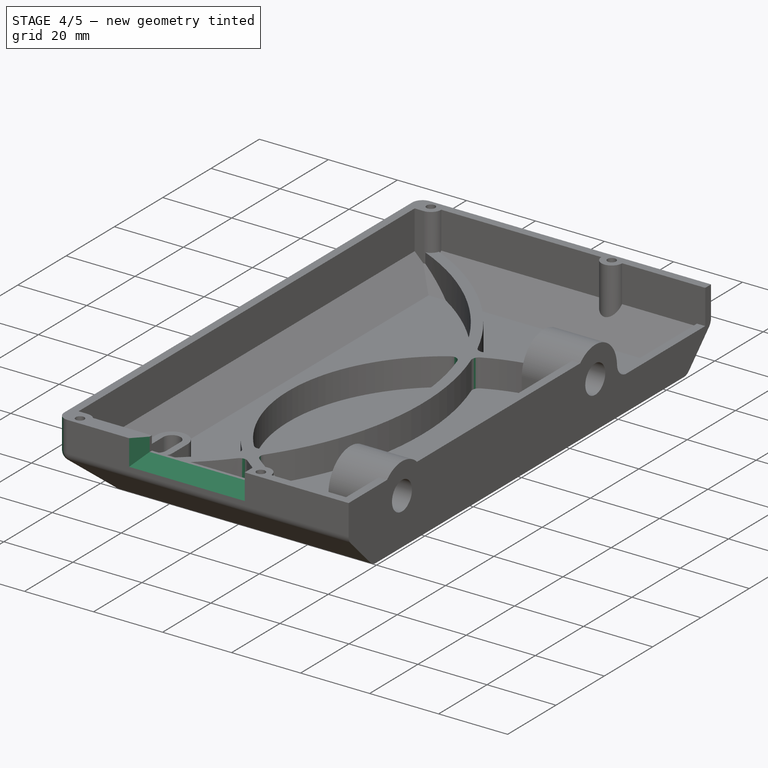
[diagram: stage 4 of 5 — iso view after this stage's code; geometry added in this stage tinted green]
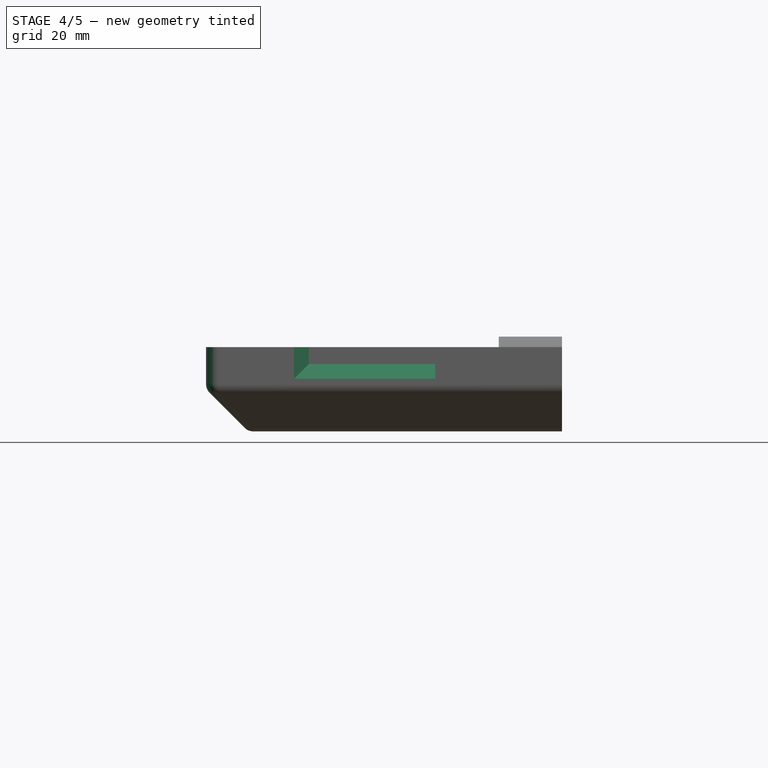
[diagram: stage 4 of 5 — front view after this stage's code; geometry added in this stage tinted green]
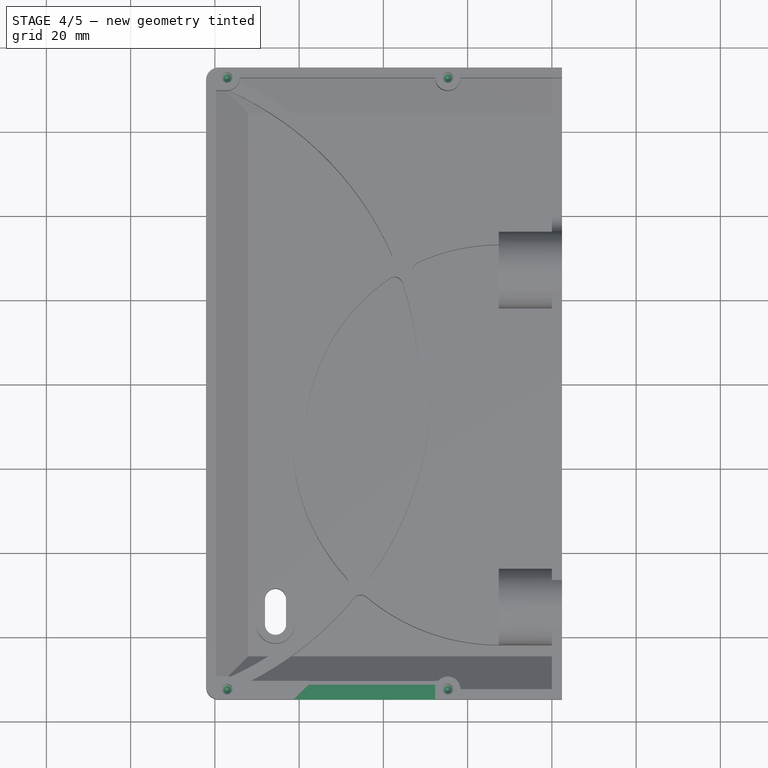
[diagram: stage 4 of 5 — top view after this stage's code; geometry added in this stage tinted green]
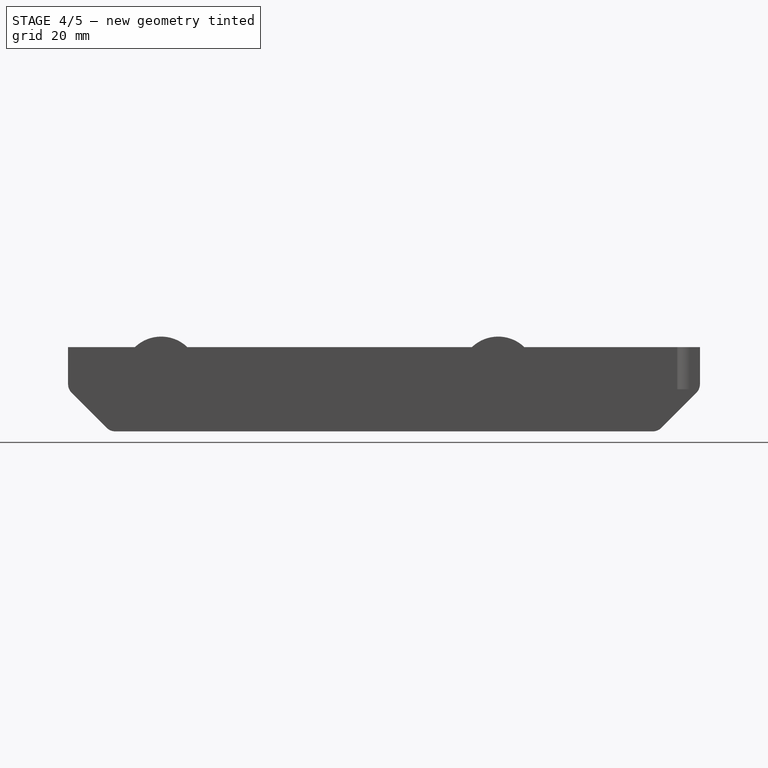
[diagram: stage 4 of 5 — right view after this stage's code; geometry added in this stage tinted green]
FEATURE [PartDesign::Chamfer] Chamfer
  Base = -> Pocket006 [Edge91,Edge93,Edge95,Edge210]
  Placement = pos=(0,0,0) rot=(0.57735,0.57735,0.57735;2.0944rad)
  Size = 1.3
FEATURE [PartDesign::Chamfer] Chamfer001
  Base = -> Chamfer [Edge24,Edge23]
  Placement = pos=(0,0,0) rot=(0.57735,0.57735,0.57735;2.0944rad)
  Size = 3.5
FEATURE [PartDesign::Fillet] Fillet
  Base = -> Chamfer001 [Edge99,Edge34,Edge97,Edge30,Edge29,Edge98,Edge88,Edge89,Edge22,Edge20]
  Placement = pos=(0,0,0) rot=(0.57735,0.57735,0.57735;2.0944rad)
  Radius = 3
FEATURE [PartDesign::Fillet] Fillet001
  Base = -> Fillet [Edge128,Edge232,Edge177,Edge231]
  Placement = pos=(0,0,0) rot=(0.57735,0.57735,0.57735;2.0944rad)
  Radius = 2
FEATURE [PartDesign::Fillet] Fillet002
  Base = -> Fillet001 [Edge67,Edge44]
  Placement = pos=(0,0,0) rot=(0.57735,0.57735,0.57735;2.0944rad)
  Radius = 0.25
FEATURE [PartDesign::Fillet] Fillet003
  Base = -> Fillet002 [Edge28,Edge87,Edge96,Edge32]
  Placement = pos=(0,0,0) rot=(0.57735,0.57735,0.57735;2.0944rad)
  Radius = 2
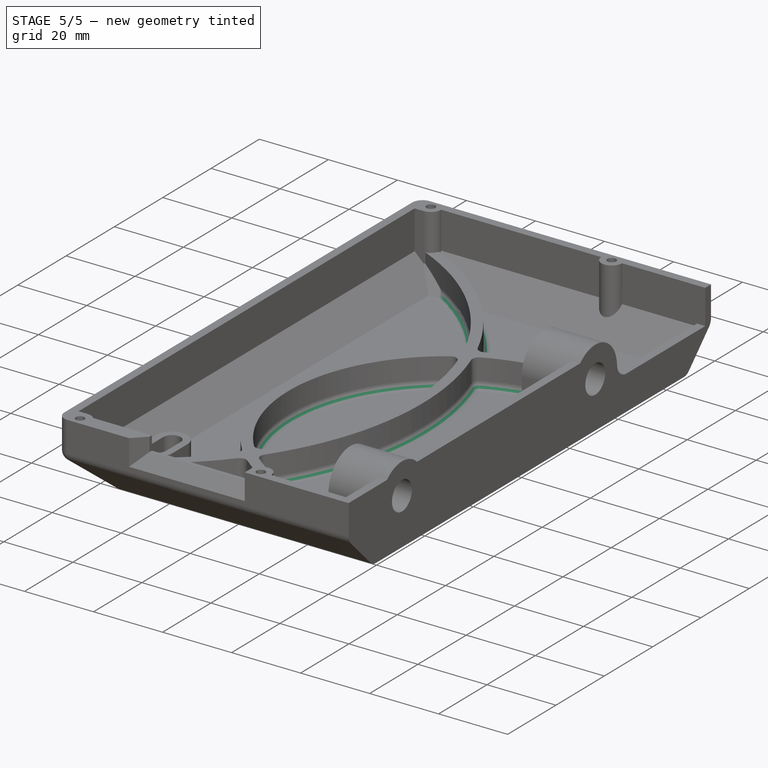
[diagram: stage 5 of 5 — iso view after this stage's code; geometry added in this stage tinted green]
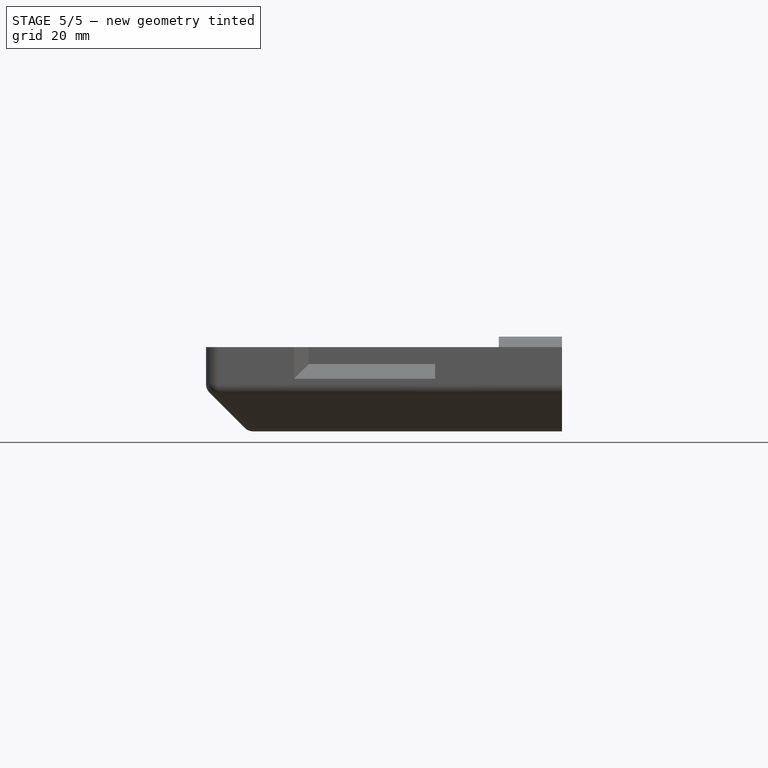
[diagram: stage 5 of 5 — front view after this stage's code; geometry added in this stage tinted green]
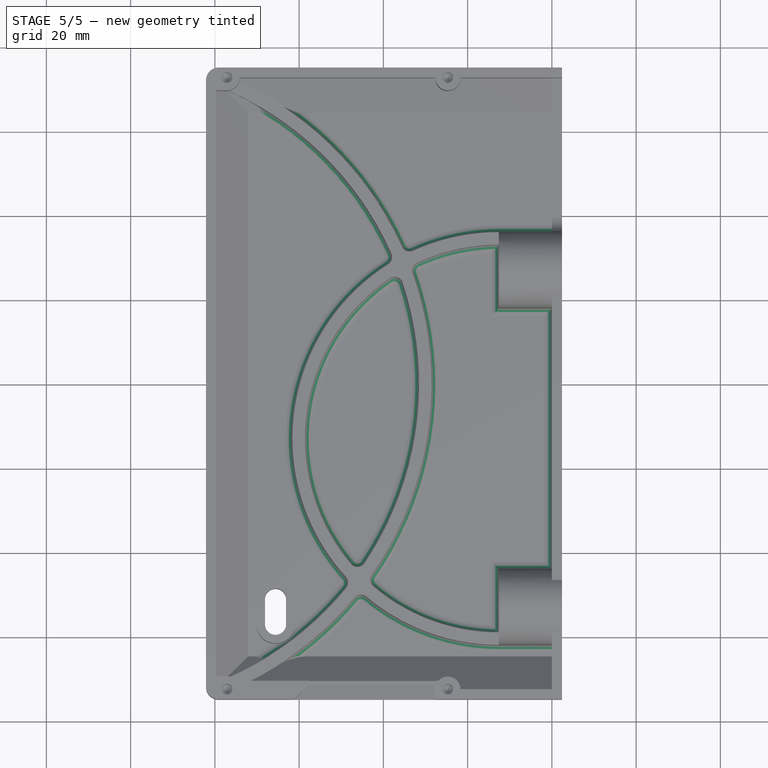
[diagram: stage 5 of 5 — top view after this stage's code; geometry added in this stage tinted green]
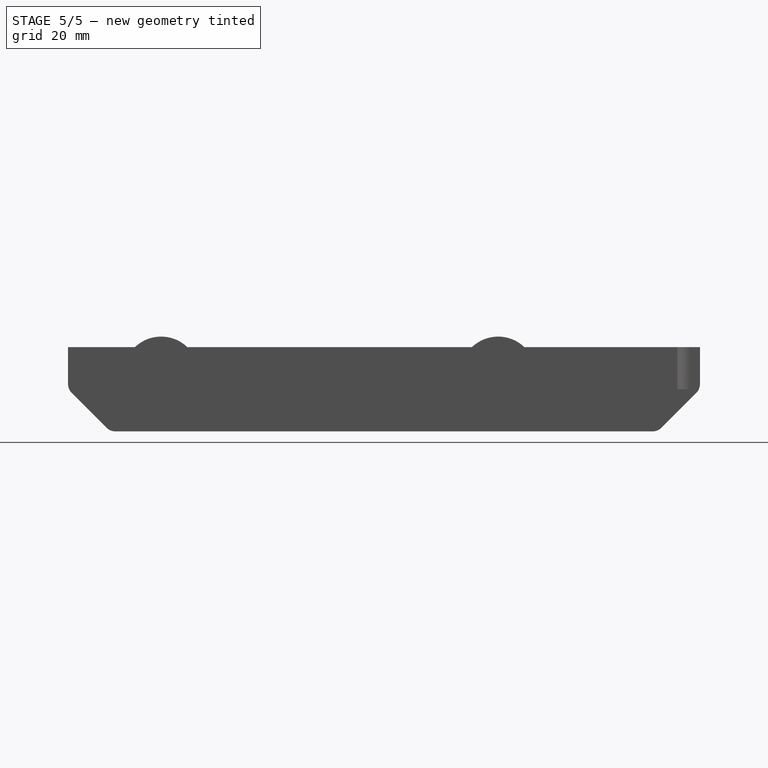
[diagram: stage 5 of 5 — right view after this stage's code; geometry added in this stage tinted green]
FEATURE [PartDesign::Fillet] Fillet004
  Base = -> Fillet003 [Edge51,Edge50,Edge56,Edge37,Edge60,Edge34,Edge119,Edge30,Edge120,Edge35,Edge121,Edge39]
  Placement = pos=(0,0,0) rot=(0.57735,0.57735,0.57735;2.0944rad)
  Radius = 1.99
FEATURE [PartDesign::Fillet] Fillet005
  Base = -> Fillet004 [Edge126,Edge130,Edge132,Edge133]
  Placement = pos=(0,0,0) rot=(0.57735,0.57735,0.57735;2.0944rad)
  Radius = 2
FEATURE [PartDesign::Fillet] Fillet006
  Base = -> Fillet005 [Edge177,Edge97,Edge110]
  Placement = pos=(0,0,0) rot=(0.57735,0.57735,0.57735;2.0944rad)
  Radius = 1.99
FEATURE [PartDesign::Fillet] Fillet007
  Base = -> Fillet006 [Edge120,Edge118,Edge107]
  Placement = pos=(0,0,0) rot=(0.57735,0.57735,0.57735;2.0944rad)
  Radius = 1.99
FEATURE [PartDesign::Fillet] Fillet008
  Base = -> Fillet007 [Edge106,Edge89]
  Placement = pos=(0,0,0) rot=(0.57735,0.57735,0.57735;2.0944rad)
  Radius = 2
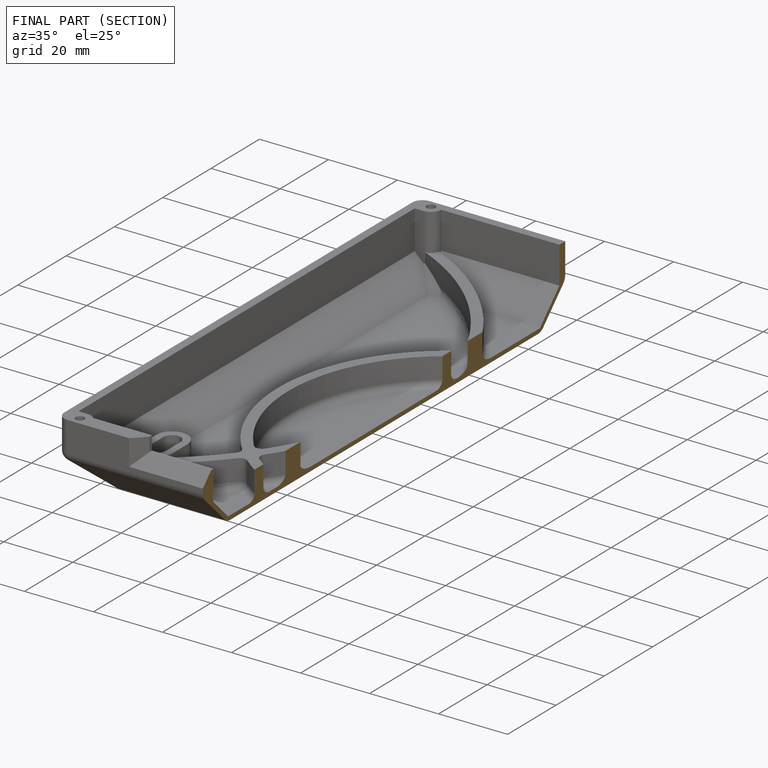
[diagram: finished part — half-section view (interior)]
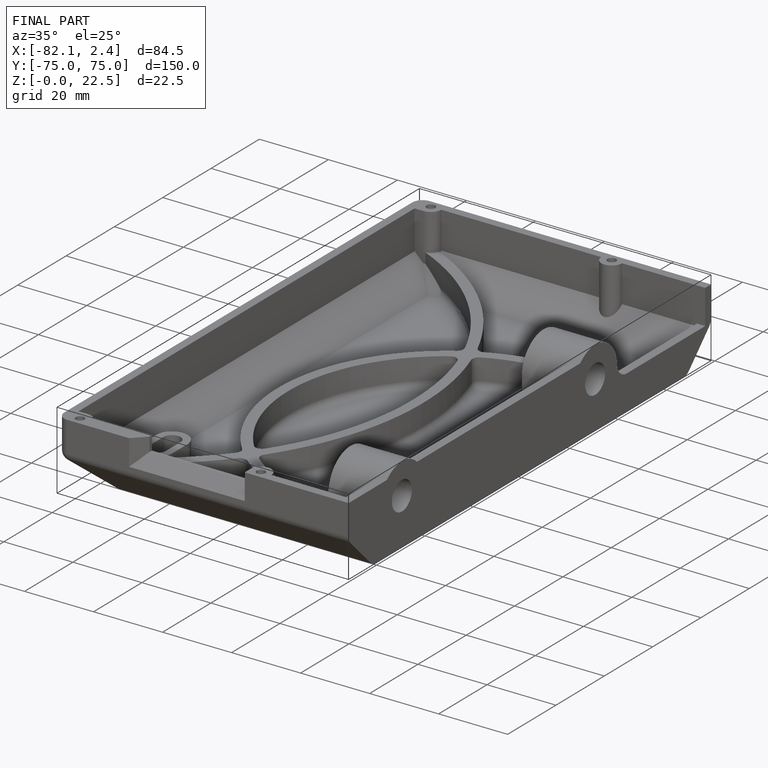
[diagram: finished part — iso view with bounding-box wireframe]
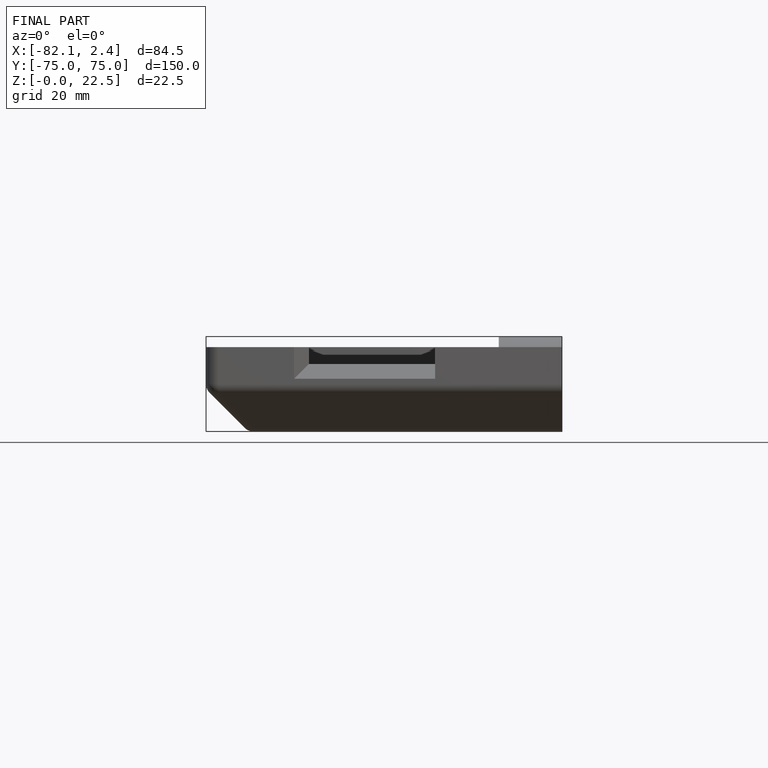
[diagram: finished part — front view with bounding-box wireframe]
